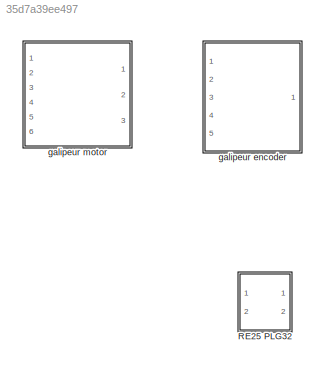
MODEL slx_35d7a39ee497
KIND library
CONFIG AbsTol = auto
CONFIG EnableMultiTasking = off
CONFIG FixedStep = auto
CONFIG MaxStep = auto
CONFIG MinStep = auto
CONFIG RelTol = 1e-3
CONFIG SampleTimeConstraint = Unconstrained
CONFIG Solver = VariableStepAuto
CONFIG SolverName = VariableStepAuto
CONFIG StartTime = 0.0
CONFIG StopTime = 10.0
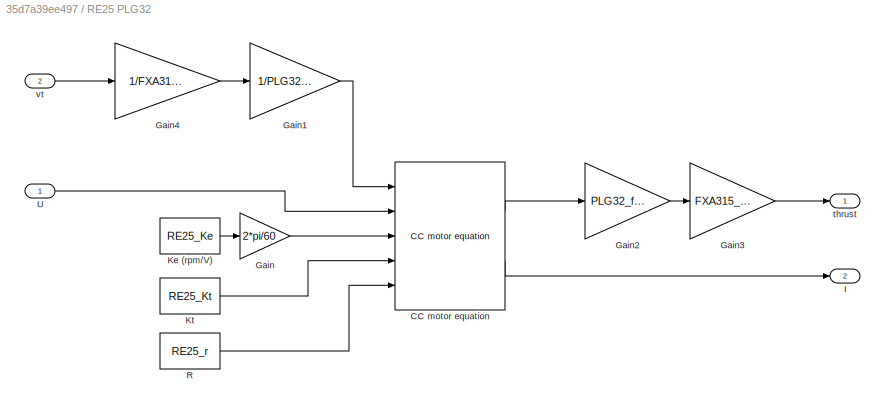
BLOCK [SubSystem] RE25 PLG32
  Ports = [2, 2]
  RequestExecContextInheritance = off
  Variant = off
BLOCK [Reference] RE25 PLG32/CC motor equation  REF=ccmotor_lib/CC motor equation  (lib defined in slx_be3b3c89daa5)
  Ports = [5, 2]
  SourceBlock = ccmotor_lib/CC motor equation
  SourceType = SubSystem
BLOCK [Gain] RE25 PLG32/Gain
  Gain = 2*pi/60
  OutDataTypeStr = Inherit: Inherit via internal rule
  ParamDataTypeStr = Inherit: Inherit via internal rule
  SaturateOnIntegerOverflow = off
BLOCK [Gain] RE25 PLG32/Gain1
  Gain = 1/PLG32_factor
  OutDataTypeStr = Inherit: Inherit via internal rule
  ParamDataTypeStr = Inherit: Inherit via internal rule
  SaturateOnIntegerOverflow = off
BLOCK [Gain] RE25 PLG32/Gain2
  Gain = PLG32_factor
  OutDataTypeStr = Inherit: Inherit via internal rule
  ParamDataTypeStr = Inherit: Inherit via internal rule
  SaturateOnIntegerOverflow = off
BLOCK [Gain] RE25 PLG32/Gain3
  Gain = FXA315_radius
  OutDataTypeStr = Inherit: Inherit via internal rule
  ParamDataTypeStr = Inherit: Inherit via internal rule
  SaturateOnIntegerOverflow = off
BLOCK [Gain] RE25 PLG32/Gain4
  Gain = 1/FXA315_radius
  OutDataTypeStr = Inherit: Inherit via internal rule
  ParamDataTypeStr = Inherit: Inherit via internal rule
  SaturateOnIntegerOverflow = off
BLOCK [Outport] RE25 PLG32/I
  IconDisplay = Port number
  Port = 2
BLOCK [Constant] RE25 PLG32/Ke (rpm//V)
  Value = RE25_Ke
BLOCK [Constant] RE25 PLG32/Kt
  Value = RE25_Kt
BLOCK [Constant] RE25 PLG32/R
  Value = RE25_r
BLOCK [Inport] RE25 PLG32/U
  IconDisplay = Port number
BLOCK [Outport] RE25 PLG32/thrust
  IconDisplay = Port number
BLOCK [Inport] RE25 PLG32/vt
  IconDisplay = Port number
  Port = 2
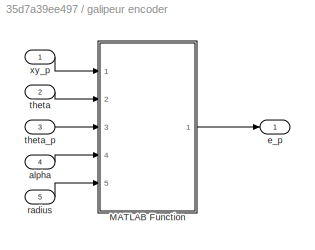
BLOCK [SubSystem] galipeur encoder
  Ports = [5, 1]
  RequestExecContextInheritance = off
  Variant = off
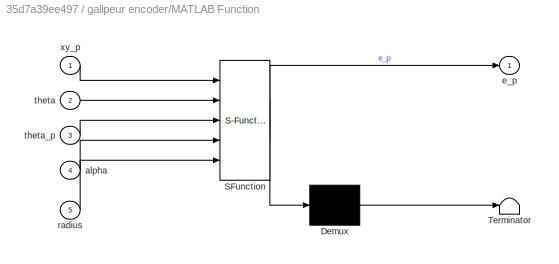
BLOCK [SubSystem] galipeur encoder/MATLAB Function
  ErrorFcn = Stateflow.Translate.translate
  PermitHierarchicalResolution = ExplicitOnly
  Ports = [5, 1]
  RequestExecContextInheritance = off
  SFBlockType = MATLAB Function
  TreatAsAtomicUnit = on
  Variant = off
BLOCK [Demux] galipeur encoder/MATLAB Function/ Demux 
  Outputs = 1
  Ports = [1, 1]
BLOCK [S-Function] galipeur encoder/MATLAB Function/ SFunction 
  EnableBusSupport = off
  FunctionName = sf_sfun
  PortCounts = [5 2]
  Ports = [5, 2]
  SFcnIsStateOwnerBlock = off
  SFunctionDeploymentMode = off
  Tag = Stateflow S-Function galipeur_lib 1
BLOCK [Terminator] galipeur encoder/MATLAB Function/ Terminator 
BLOCK [Inport] galipeur encoder/MATLAB Function/alpha
  IconDisplay = Port number
  Port = 4
BLOCK [Outport] galipeur encoder/MATLAB Function/e_p
  IconDisplay = Port number
BLOCK [Inport] galipeur encoder/MATLAB Function/radius
  IconDisplay = Port number
  Port = 5
BLOCK [Inport] galipeur encoder/MATLAB Function/theta
  IconDisplay = Port number
  Port = 2
BLOCK [Inport] galipeur encoder/MATLAB Function/theta_p
  IconDisplay = Port number
  Port = 3
BLOCK [Inport] galipeur encoder/MATLAB Function/xy_p
  IconDisplay = Port number
BLOCK [Inport] galipeur encoder/alpha
  IconDisplay = Port number
  Port = 4
BLOCK [Outport] galipeur encoder/e_p
  IconDisplay = Port number
BLOCK [Inport] galipeur encoder/radius
  IconDisplay = Port number
  Port = 5
BLOCK [Inport] galipeur encoder/theta
  IconDisplay = Port number
  Port = 2
BLOCK [Inport] galipeur encoder/theta_p
  IconDisplay = Port number
  Port = 3
BLOCK [Inport] galipeur encoder/xy_p
  IconDisplay = Port number
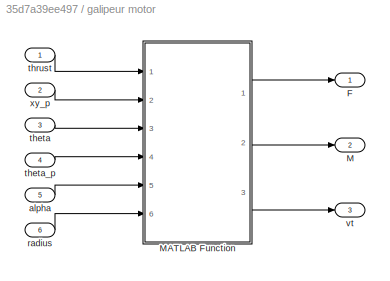
BLOCK [SubSystem] galipeur motor
  Ports = [6, 3]
  RequestExecContextInheritance = off
  Variant = off
BLOCK [Outport] galipeur motor/F
  IconDisplay = Port number
BLOCK [Outport] galipeur motor/M
  IconDisplay = Port number
  Port = 2
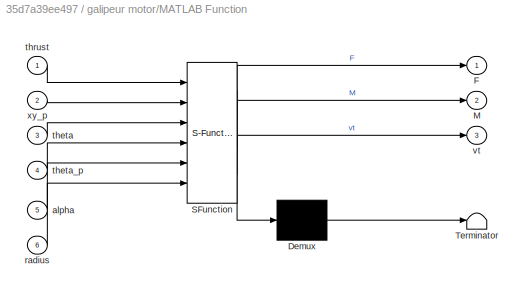
BLOCK [SubSystem] galipeur motor/MATLAB Function
  ErrorFcn = Stateflow.Translate.translate
  PermitHierarchicalResolution = ExplicitOnly
  Ports = [6, 3]
  RequestExecContextInheritance = off
  SFBlockType = MATLAB Function
  TreatAsAtomicUnit = on
  Variant = off
BLOCK [Demux] galipeur motor/MATLAB Function/ Demux 
  Outputs = 1
  Ports = [1, 1]
BLOCK [S-Function] galipeur motor/MATLAB Function/ SFunction 
  EnableBusSupport = off
  FunctionName = sf_sfun
  PortCounts = [6 4]
  Ports = [6, 4]
  SFcnIsStateOwnerBlock = off
  SFunctionDeploymentMode = off
  Tag = Stateflow S-Function galipeur_lib 2
BLOCK [Terminator] galipeur motor/MATLAB Function/ Terminator 
BLOCK [Outport] galipeur motor/MATLAB Function/F
  IconDisplay = Port number
BLOCK [Outport] galipeur motor/MATLAB Function/M
  IconDisplay = Port number
  Port = 2
BLOCK [Inport] galipeur motor/MATLAB Function/alpha
  IconDisplay = Port number
  Port = 5
BLOCK [Inport] galipeur motor/MATLAB Function/radius
  IconDisplay = Port number
  Port = 6
BLOCK [Inport] galipeur motor/MATLAB Function/theta
  IconDisplay = Port number
  Port = 3
BLOCK [Inport] galipeur motor/MATLAB Function/theta_p
  IconDisplay = Port number
  Port = 4
BLOCK [Inport] galipeur motor/MATLAB Function/thrust
  IconDisplay = Port number
BLOCK [Outport] galipeur motor/MATLAB Function/vt
  IconDisplay = Port number
  Port = 3
BLOCK [Inport] galipeur motor/MATLAB Function/xy_p
  IconDisplay = Port number
  Port = 2
BLOCK [Inport] galipeur motor/alpha
  IconDisplay = Port number
  Port = 5
BLOCK [Inport] galipeur motor/radius
  IconDisplay = Port number
  Port = 6
BLOCK [Inport] galipeur motor/theta
  IconDisplay = Port number
  Port = 3
BLOCK [Inport] galipeur motor/theta_p
  IconDisplay = Port number
  Port = 4
BLOCK [Inport] galipeur motor/thrust
  IconDisplay = Port number
BLOCK [Outport] galipeur motor/vt
  IconDisplay = Port number
  Port = 3
BLOCK [Inport] galipeur motor/xy_p
  IconDisplay = Port number
  Port = 2
LINE RE25 PLG32/CC motor equation:1 -> RE25 PLG32/Gain2:1
LINE RE25 PLG32/CC motor equation:2 -> RE25 PLG32/I:1
LINE RE25 PLG32/Gain1:1 -> RE25 PLG32/CC motor equation:1
LINE RE25 PLG32/Gain2:1 -> RE25 PLG32/Gain3:1
LINE RE25 PLG32/Gain3:1 -> RE25 PLG32/thrust:1
LINE RE25 PLG32/Gain4:1 -> RE25 PLG32/Gain1:1
LINE RE25 PLG32/Gain:1 -> RE25 PLG32/CC motor equation:3
LINE RE25 PLG32/Ke (rpm//V):1 -> RE25 PLG32/Gain:1
LINE RE25 PLG32/Kt:1 -> RE25 PLG32/CC motor equation:4
LINE RE25 PLG32/R:1 -> RE25 PLG32/CC motor equation:5
LINE RE25 PLG32/U:1 -> RE25 PLG32/CC motor equation:2
LINE RE25 PLG32/vt:1 -> RE25 PLG32/Gain4:1
LINE galipeur encoder/MATLAB Function:1 -> galipeur encoder/e_p:1
LINE galipeur encoder/alpha:1 -> galipeur encoder/MATLAB Function:4
LINE galipeur encoder/radius:1 -> galipeur encoder/MATLAB Function:5
LINE galipeur encoder/theta:1 -> galipeur encoder/MATLAB Function:2
LINE galipeur encoder/theta_p:1 -> galipeur encoder/MATLAB Function:3
LINE galipeur encoder/xy_p:1 -> galipeur encoder/MATLAB Function:1
LINE galipeur motor/MATLAB Function:1 -> galipeur motor/F:1
LINE galipeur motor/MATLAB Function:2 -> galipeur motor/M:1
LINE galipeur motor/MATLAB Function:3 -> galipeur motor/vt:1
LINE galipeur motor/alpha:1 -> galipeur motor/MATLAB Function:5
LINE galipeur motor/radius:1 -> galipeur motor/MATLAB Function:6
LINE galipeur motor/theta:1 -> galipeur motor/MATLAB Function:3
LINE galipeur motor/theta_p:1 -> galipeur motor/MATLAB Function:4
LINE galipeur motor/thrust:1 -> galipeur motor/MATLAB Function:1
LINE galipeur motor/xy_p:1 -> galipeur motor/MATLAB Function:2
CHART galipeur encoder/MATLAB Function states=1 transitions=1
  STATE_LABEL 'eML_blk_kernel()'
  STATE_LABEL 'SCRIPT:\nfunction e_p = fcn(xy_p,theta,theta_p,alpha,radius)\n% xy_p: robot velocity in ground reference (xp, yp)\n% alpha: motor orientation placement relative to robot\n% radius: motor distance from robot CG relative to robot\n% theta: robot orientation relative to ground\n% theta_p: robot rotation speed\n\n% compute unitary vector perpendicular to thrust\nup = [cos(theta+alpha); sin(theta+alpha)];\n% com...<+206ch>'
CHART galipeur motor/MATLAB Function states=1 transitions=1
  STATE_LABEL 'eML_blk_kernel()'
  STATE_LABEL 'SCRIPT:\nfunction [F,M,vt]= fcn(thrust, xy_p, theta, theta_p, alpha, radius)\n% thrust: motor thrust in N at contact\n% xy_p: robot velocity in ground reference (xp, yp)\n% alpha: motor orientation placement relative to robot\n% radius: motor distance from robot CG relative to robot\n% theta: robot orientation relative to ground\n% theta_p: robot rotation speed\n\n% compute unitary vector perpendicular to ...<+562ch>'
